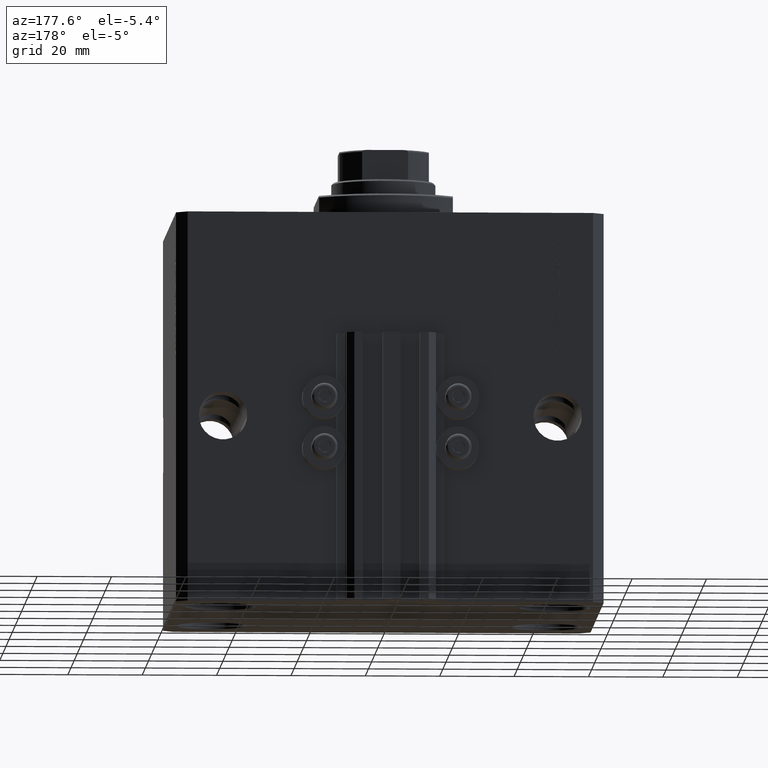
[diagram: clean part render]
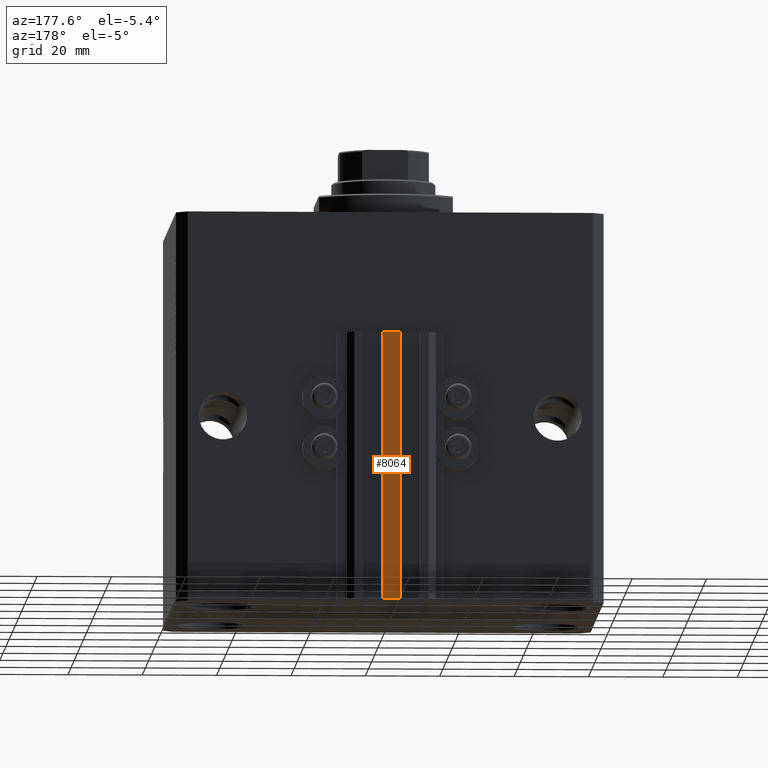
[diagram: same view with one face highlighted and labeled with its STEP entity id]
A machine part, auxiliary view. The second image highlights one B-rep face of the part: STEP entity #8064.
In plain terms, the highlighted planar face has unit normal (0, -1, 0).
Its self-contained STEP definition (entity closure, byte-faithful):
#96 = CARTESIAN_POINT ( 'NONE',  ( -2.350000000000003642, 53.00000000000000000, -105.0000000000000000 ) ) ;
#245 = AXIS2_PLACEMENT_3D ( 'NONE', #29890, #10744, #10980 ) ;
#405 = LINE ( 'NONE', #11004, #45085 ) ;
#651 = CARTESIAN_POINT ( 'NONE',  ( 2.349999999999999645, 53.00000000000000000, -105.0000000000000000 ) ) ;
#2513 = VECTOR ( 'NONE', #11419, 1000.000000000000000 ) ;
#7766 = FACE_OUTER_BOUND ( 'NONE', #26664, .T. ) ;
#8064 = ADVANCED_FACE ( 'NONE', ( #7766 ), #26457, .F. ) ;
#8452 = ORIENTED_EDGE ( 'NONE', *, *, #45574, .F. ) ;
#9707 = ORIENTED_EDGE ( 'NONE', *, *, #21725, .F. ) ;
#9716 = EDGE_CURVE ( 'NONE', #21209, #21486, #16422, .T. ) ;
#10744 = DIRECTION ( 'NONE',  ( 0.000000000000000000, -1.000000000000000000, 0.000000000000000000 ) ) ;
#10980 = DIRECTION ( 'NONE',  ( 0.000000000000000000, -0.000000000000000000, -1.000000000000000000 ) ) ;
#11004 = CARTESIAN_POINT ( 'NONE',  ( -2.350000000000003642, 53.00000000000000000, -105.0000000000000000 ) ) ;
#11419 = DIRECTION ( 'NONE',  ( 0.000000000000000000, 0.000000000000000000, 1.000000000000000000 ) ) ;
#12275 = ORIENTED_EDGE ( 'NONE', *, *, #35737, .T. ) ;
#13894 = VERTEX_POINT ( 'NONE', #15640 ) ;
#15640 = CARTESIAN_POINT ( 'NONE',  ( 2.349999999999999645, 53.00000000000000000, -105.0000000000000000 ) ) ;
#16422 = LINE ( 'NONE', #19386, #45757 ) ;
#19386 = CARTESIAN_POINT ( 'NONE',  ( -2.350000000000003642, 53.00000000000000000, -33.00000000000000000 ) ) ;
#21209 = VERTEX_POINT ( 'NONE', #30833 ) ;
#21486 = VERTEX_POINT ( 'NONE', #23345 ) ;
#21708 = VERTEX_POINT ( 'NONE', #42705 ) ;
#21725 = EDGE_CURVE ( 'NONE', #13894, #21486, #42224, .T. ) ;
#22509 = VECTOR ( 'NONE', #46159, 1000.000000000000000 ) ;
#23345 = CARTESIAN_POINT ( 'NONE',  ( 2.349999999999999645, 53.00000000000000000, -33.00000000000000000 ) ) ;
#24016 = DIRECTION ( 'NONE',  ( 1.000000000000000000, 0.000000000000000000, 0.000000000000000000 ) ) ;
#26457 = PLANE ( 'NONE',  #245 ) ;
#26664 = EDGE_LOOP ( 'NONE', ( #28354, #9707, #8452, #12275 ) ) ;
#28354 = ORIENTED_EDGE ( 'NONE', *, *, #9716, .T. ) ;
#29890 = CARTESIAN_POINT ( 'NONE',  ( -2.350000000000003642, 53.00000000000000000, -105.0000000000000000 ) ) ;
#30833 = CARTESIAN_POINT ( 'NONE',  ( -2.350000000000003642, 53.00000000000000000, -33.00000000000000000 ) ) ;
#33609 = DIRECTION ( 'NONE',  ( 1.000000000000000000, 0.000000000000000000, 0.000000000000000000 ) ) ;
#35737 = EDGE_CURVE ( 'NONE', #21708, #21209, #44869, .T. ) ;
#42224 = LINE ( 'NONE', #651, #22509 ) ;
#42705 = CARTESIAN_POINT ( 'NONE',  ( -2.350000000000003642, 53.00000000000000000, -105.0000000000000000 ) ) ;
#44869 = LINE ( 'NONE', #96, #2513 ) ;
#45085 = VECTOR ( 'NONE', #33609, 1000.000000000000000 ) ;
#45574 = EDGE_CURVE ( 'NONE', #21708, #13894, #405, .T. ) ;
#45757 = VECTOR ( 'NONE', #24016, 1000.000000000000000 ) ;
#46159 = DIRECTION ( 'NONE',  ( 0.000000000000000000, 0.000000000000000000, 1.000000000000000000 ) ) ;